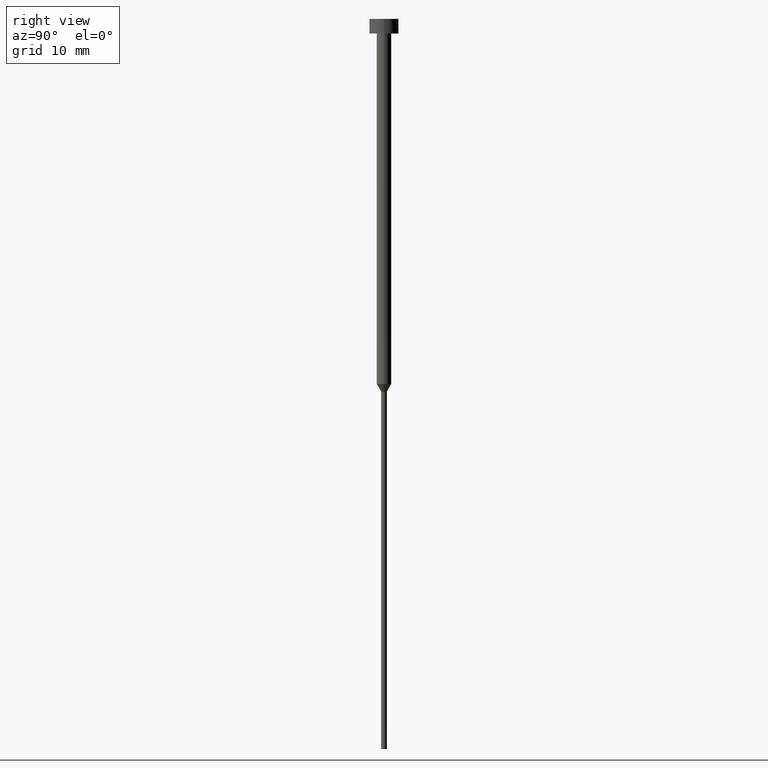
[diagram: clean part render]
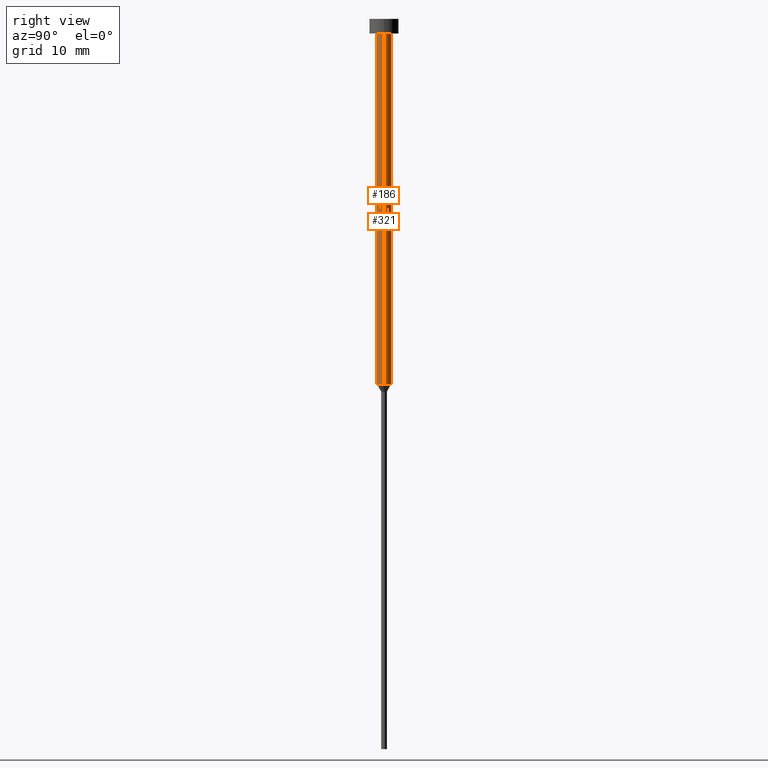
[diagram: same view with one multi-face feature highlighted, each face labeled with its STEP entity id]
A machine part, right view. The highlighted faces form ONE feature: a constant-radius fillet chain: 2 tangent blend faces with common blend radius 1 mm. The faces share edges in the B-rep.
Their STEP definitions:
[1] entity #321 (Cylinder):
#28 = DIRECTION ( 'NONE',  ( -0.000000000000000000, -0.000000000000000000, 1.000000000000000000 ) ) ;
#54 = ORIENTED_EDGE ( 'NONE', *, *, #158, .F. ) ;
#55 = CARTESIAN_POINT ( 'NONE',  ( 0.000000000000000000, 0.000000000000000000, 0.000000000000000000 ) ) ;
#60 = FACE_OUTER_BOUND ( 'NONE', #155, .T. ) ;
#62 = ORIENTED_EDGE ( 'NONE', *, *, #136, .T. ) ;
#68 = LINE ( 'NONE', #110, #241 ) ;
#70 = CARTESIAN_POINT ( 'NONE',  ( 0.000000000000000000, 0.000000000000000000, -2.000000000000000444 ) ) ;
#79 = EDGE_CURVE ( 'NONE', #238, #80, #99, .T. ) ;
#80 = VERTEX_POINT ( 'NONE', #94 ) ;
#81 = CARTESIAN_POINT ( 'NONE',  ( 1.000000000000003331, 0.000000000000000000, 0.000000000000000000 ) ) ;
#87 = CARTESIAN_POINT ( 'NONE',  ( 0.000000000000000000, 0.000000000000000000, -50.00000000000000000 ) ) ;
#89 = LINE ( 'NONE', #81, #245 ) ;
#91 = DIRECTION ( 'NONE',  ( -0.000000000000000000, -0.000000000000000000, 1.000000000000000000 ) ) ;
#94 = CARTESIAN_POINT ( 'NONE',  ( -1.000000000000003109, 1.224646799147356905E-16, -50.00000000000000000 ) ) ;
#97 = DIRECTION ( 'NONE',  ( 1.000000000000000000, 0.000000000000000000, 0.000000000000000000 ) ) ;
#99 = CIRCLE ( 'NONE', #184, 1.000000000000003109 ) ;
#110 = CARTESIAN_POINT ( 'NONE',  ( -1.000000000000003331, 1.224646799147357151E-16, 0.000000000000000000 ) ) ;
#135 = CARTESIAN_POINT ( 'NONE',  ( 1.000000000000003109, 0.000000000000000000, -50.00000000000000000 ) ) ;
#136 = EDGE_CURVE ( 'NONE', #80, #329, #68, .T. ) ;
#155 = EDGE_LOOP ( 'NONE', ( #301, #62, #54, #277 ) ) ;
#158 = EDGE_CURVE ( 'NONE', #272, #329, #244, .T. ) ;
#167 = CARTESIAN_POINT ( 'NONE',  ( -1.000000000000003553, 1.224646799147357398E-16, -2.000000000000000444 ) ) ;
#177 = DIRECTION ( 'NONE',  ( -0.000000000000000000, -0.000000000000000000, 1.000000000000000000 ) ) ;
#178 = AXIS2_PLACEMENT_3D ( 'NONE', #55, #91, #242 ) ;
#184 = AXIS2_PLACEMENT_3D ( 'NONE', #87, #195, #97 ) ;
#195 = DIRECTION ( 'NONE',  ( -0.000000000000000000, -0.000000000000000000, 1.000000000000000000 ) ) ;
#207 = AXIS2_PLACEMENT_3D ( 'NONE', #70, #320, #261 ) ;
#238 = VERTEX_POINT ( 'NONE', #135 ) ;
#241 = VECTOR ( 'NONE', #177, 1000.000000000000000 ) ;
#242 = DIRECTION ( 'NONE',  ( 1.000000000000000000, 0.000000000000000000, 0.000000000000000000 ) ) ;
#244 = CIRCLE ( 'NONE', #207, 1.000000000000003553 ) ;
#245 = VECTOR ( 'NONE', #28, 1000.000000000000000 ) ;
#250 = CYLINDRICAL_SURFACE ( 'NONE', #178, 1.000000000000003331 ) ;
#261 = DIRECTION ( 'NONE',  ( 1.000000000000000000, 0.000000000000000000, 0.000000000000000000 ) ) ;
#272 = VERTEX_POINT ( 'NONE', #335 ) ;
#277 = ORIENTED_EDGE ( 'NONE', *, *, #283, .F. ) ;
#283 = EDGE_CURVE ( 'NONE', #238, #272, #89, .T. ) ;
#301 = ORIENTED_EDGE ( 'NONE', *, *, #79, .T. ) ;
#320 = DIRECTION ( 'NONE',  ( -0.000000000000000000, -0.000000000000000000, 1.000000000000000000 ) ) ;
#321 = ADVANCED_FACE ( 'NONE', ( #60 ), #250, .T. ) ;
#329 = VERTEX_POINT ( 'NONE', #167 ) ;
#335 = CARTESIAN_POINT ( 'NONE',  ( 1.000000000000003553, 0.000000000000000000, -2.000000000000000444 ) ) ;
[2] entity #186 (Cylinder):
#16 = CYLINDRICAL_SURFACE ( 'NONE', #95, 1.000000000000003331 ) ;
#28 = DIRECTION ( 'NONE',  ( -0.000000000000000000, -0.000000000000000000, 1.000000000000000000 ) ) ;
#46 = DIRECTION ( 'NONE',  ( 1.000000000000000000, 0.000000000000000000, 0.000000000000000000 ) ) ;
#49 = CIRCLE ( 'NONE', #251, 1.000000000000003553 ) ;
#51 = CARTESIAN_POINT ( 'NONE',  ( 0.000000000000000000, 0.000000000000000000, 0.000000000000000000 ) ) ;
#61 = EDGE_CURVE ( 'NONE', #329, #272, #49, .T. ) ;
#68 = LINE ( 'NONE', #110, #241 ) ;
#73 = CARTESIAN_POINT ( 'NONE',  ( 0.000000000000000000, 0.000000000000000000, -50.00000000000000000 ) ) ;
#80 = VERTEX_POINT ( 'NONE', #94 ) ;
#81 = CARTESIAN_POINT ( 'NONE',  ( 1.000000000000003331, 0.000000000000000000, 0.000000000000000000 ) ) ;
#89 = LINE ( 'NONE', #81, #245 ) ;
#94 = CARTESIAN_POINT ( 'NONE',  ( -1.000000000000003109, 1.224646799147356905E-16, -50.00000000000000000 ) ) ;
#95 = AXIS2_PLACEMENT_3D ( 'NONE', #51, #237, #228 ) ;
#110 = CARTESIAN_POINT ( 'NONE',  ( -1.000000000000003331, 1.224646799147357151E-16, 0.000000000000000000 ) ) ;
#125 = CARTESIAN_POINT ( 'NONE',  ( 0.000000000000000000, 0.000000000000000000, -2.000000000000000444 ) ) ;
#133 = CIRCLE ( 'NONE', #334, 1.000000000000003109 ) ;
#135 = CARTESIAN_POINT ( 'NONE',  ( 1.000000000000003109, 0.000000000000000000, -50.00000000000000000 ) ) ;
#136 = EDGE_CURVE ( 'NONE', #80, #329, #68, .T. ) ;
#146 = DIRECTION ( 'NONE',  ( 1.000000000000000000, 0.000000000000000000, 0.000000000000000000 ) ) ;
#154 = FACE_OUTER_BOUND ( 'NONE', #173, .T. ) ;
#167 = CARTESIAN_POINT ( 'NONE',  ( -1.000000000000003553, 1.224646799147357398E-16, -2.000000000000000444 ) ) ;
#173 = EDGE_LOOP ( 'NONE', ( #310, #348, #190, #270 ) ) ;
#177 = DIRECTION ( 'NONE',  ( -0.000000000000000000, -0.000000000000000000, 1.000000000000000000 ) ) ;
#186 = ADVANCED_FACE ( 'NONE', ( #154 ), #16, .T. ) ;
#190 = ORIENTED_EDGE ( 'NONE', *, *, #283, .T. ) ;
#228 = DIRECTION ( 'NONE',  ( 1.000000000000000000, 0.000000000000000000, 0.000000000000000000 ) ) ;
#237 = DIRECTION ( 'NONE',  ( -0.000000000000000000, -0.000000000000000000, 1.000000000000000000 ) ) ;
#238 = VERTEX_POINT ( 'NONE', #135 ) ;
#241 = VECTOR ( 'NONE', #177, 1000.000000000000000 ) ;
#245 = VECTOR ( 'NONE', #28, 1000.000000000000000 ) ;
#251 = AXIS2_PLACEMENT_3D ( 'NONE', #125, #333, #146 ) ;
#253 = EDGE_CURVE ( 'NONE', #80, #238, #133, .T. ) ;
#259 = DIRECTION ( 'NONE',  ( -0.000000000000000000, -0.000000000000000000, 1.000000000000000000 ) ) ;
#270 = ORIENTED_EDGE ( 'NONE', *, *, #61, .F. ) ;
#272 = VERTEX_POINT ( 'NONE', #335 ) ;
#283 = EDGE_CURVE ( 'NONE', #238, #272, #89, .T. ) ;
#310 = ORIENTED_EDGE ( 'NONE', *, *, #136, .F. ) ;
#329 = VERTEX_POINT ( 'NONE', #167 ) ;
#333 = DIRECTION ( 'NONE',  ( -0.000000000000000000, -0.000000000000000000, 1.000000000000000000 ) ) ;
#334 = AXIS2_PLACEMENT_3D ( 'NONE', #73, #259, #46 ) ;
#335 = CARTESIAN_POINT ( 'NONE',  ( 1.000000000000003553, 0.000000000000000000, -2.000000000000000444 ) ) ;
#348 = ORIENTED_EDGE ( 'NONE', *, *, #253, .T. ) ;